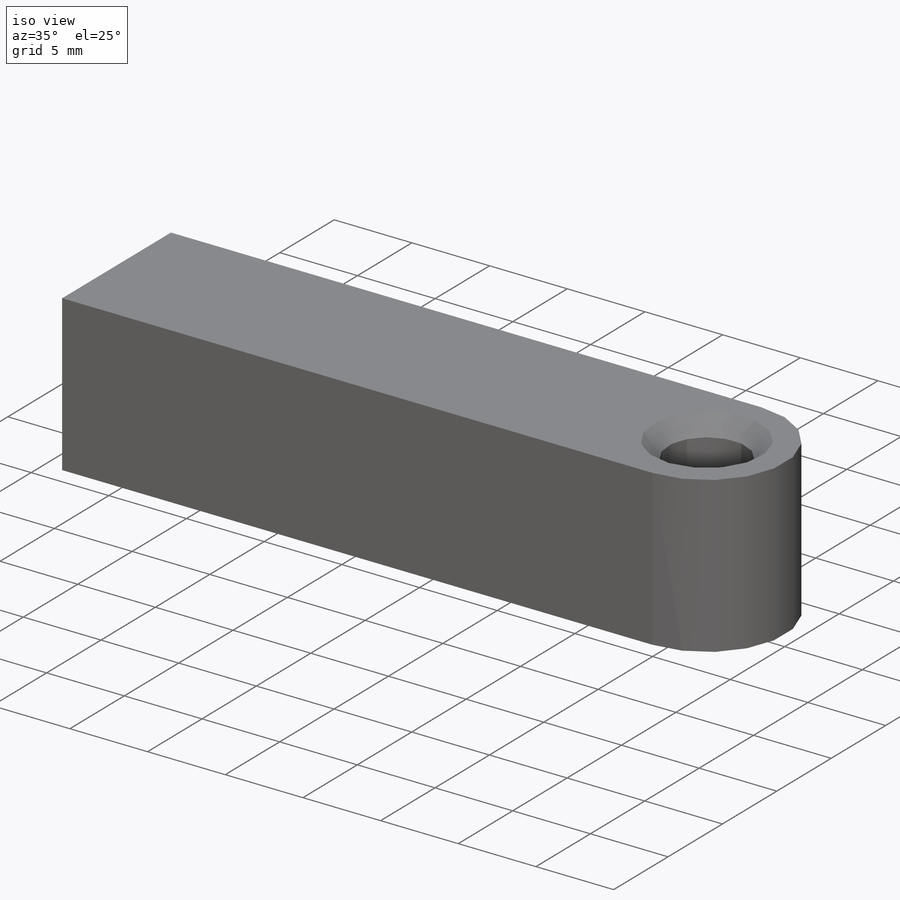
[diagram: iso view]
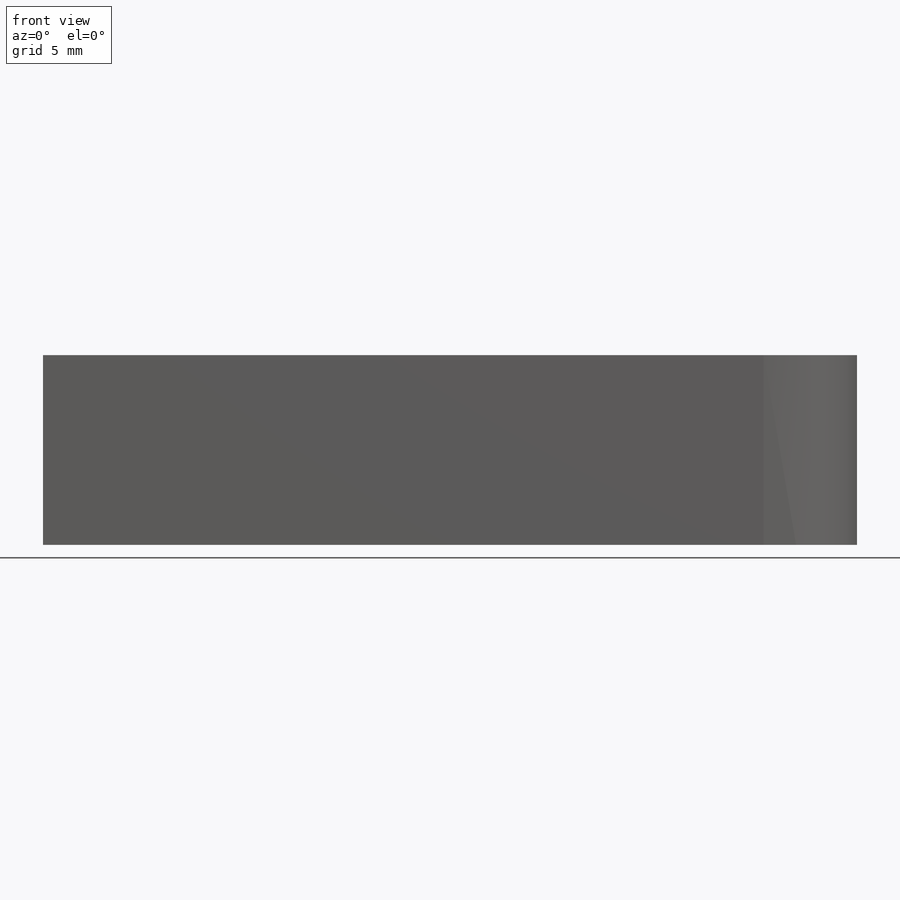
[diagram: front view]
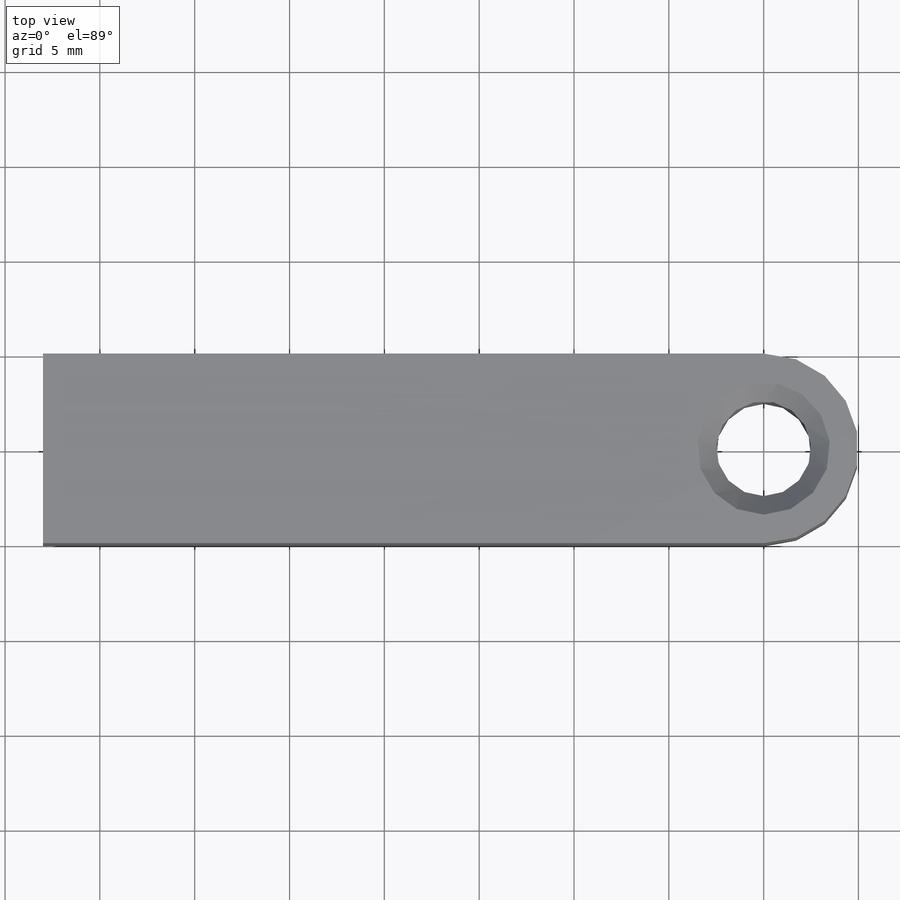
[diagram: top view]
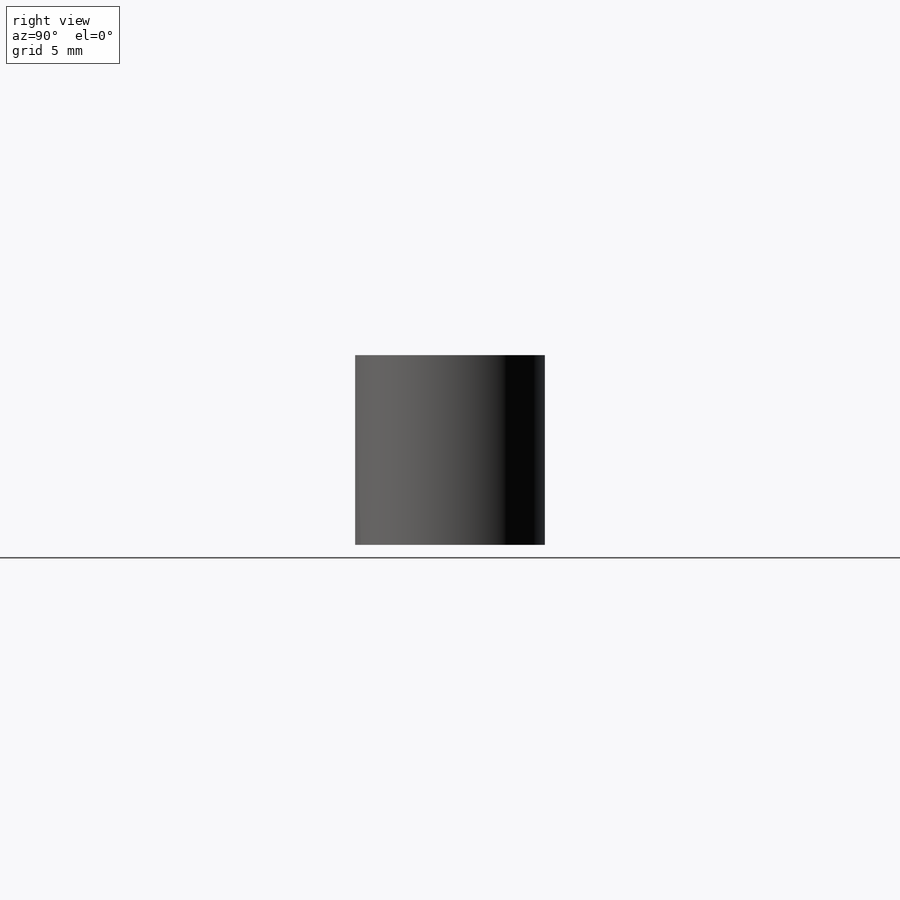
[diagram: right view]
SOLIDWORKS PART (.sldprt)
format: sldprt  version: not decoded by parser v0  size: 171,520 bytes
history: native  units: mm
features: sketch x4, plane x3, material x1, extrude x1, hole x1, thread x1 (+8 scaffold rows collapsed)
feature tree (19):
  scaffold x8  (default folders/planes/origin — collapsed)
  material  "Matériau <non spécifié>"
  plane  "Plan de face"
  plane  "Plan de dessus"
  plane  "Plan de droite"
  sketch  "Esquisse1"  dims[D1=10.0mm]
  extrude  "Boss.-Extru.1"  Depth=10mm
  sketch  "Esquisse2"  dims[D1=10.0mm]
  hole  "Trou taraudé M61"  Diameter=5mm Depth=10mm
  sketch  "Esquisse4"
  sketch  "Esquisse3"  dims[hole-wizard template sketch: 46 standard entries collapsed; hole parameters kept: c15.Diamètre du trou pour taraudage jusqu'au prochain=5.0mm c15.Profondeur du trou pour taraudage jusqu'au prochain=10.0mm c15.Diamètre du fraisage entrant=7.0mm c15.D4=~3.666174mm c15.Angle du fraisage entrant=90.0deg c15.Diamètre du fraisage débouchant=7.0mm c15.D6=~9.919017mm c15.Angle du fraisage débouchant=90.0deg]
  thread  "Filetage de perçage1"  Diameter=6mm  [1 undecoded]
decode coverage: 6 of 7 modeling features carry decoded parameters
note: ~ marks probable driven/reference dimensions
note: 1 parameter value undecoded
note: suppression state not decoded; provenance and decode notes live in map.json
